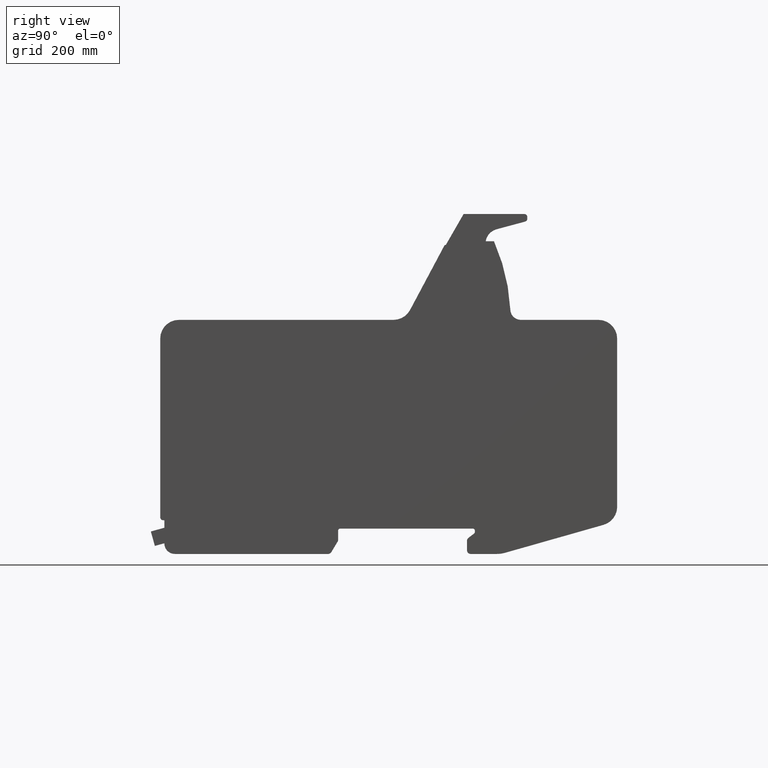
[diagram: clean part render]
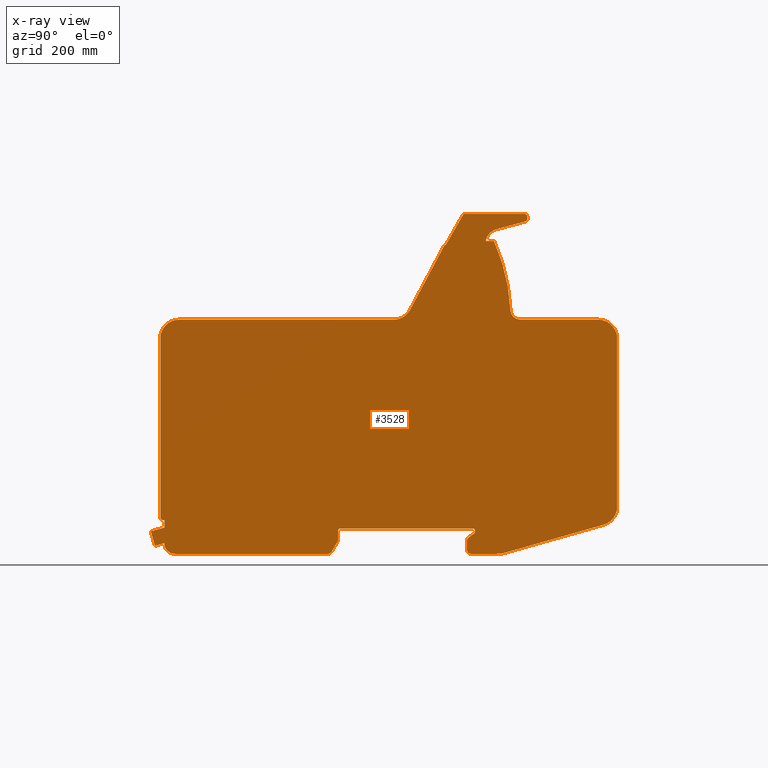
[diagram: x-ray — body ghosted, one internal face saturated and labeled with its STEP entity id]
A machine part, right view, then the same camera in x-ray: the body is ghosted and one INTERNAL B-rep face — a face not visible from any outside direction — is saturated and labeled: STEP entity #3528.
In plain terms, the highlighted planar face has unit normal (1, 0, 0).
Its self-contained STEP definition (entity closure, byte-faithful):
#2058=CARTESIAN_POINT('',(400.0,-16.00000000000005,-32.452741697599755));
#2059=VERTEX_POINT('',#2058);
#2066=CARTESIAN_POINT('',(400.0,-16.00000000000005,-57.499999999999822));
#2067=VERTEX_POINT('',#2066);
#2068=CARTESIAN_POINT('',(400.0,-16.00000000000005,-32.452741697599755));
#2069=DIRECTION('',(0.0,0.0,-1.0));
#2070=VECTOR('',#2069,25.047258302400067);
#2071=LINE('',#2068,#2070);
#2072=EDGE_CURVE('',#2059,#2067,#2071,.T.);
#2097=CARTESIAN_POINT('',(400.0,-12.06043215261758,-24.498424497223393));
#2098=VERTEX_POINT('',#2097);
#2105=CARTESIAN_POINT('',(400.0,-5.999999999982961,-32.452741697565266));
#2106=DIRECTION('',(1.0,0.0,0.0));
#2107=DIRECTION('',(0.0,-0.896114729056824,0.443822478438637));
#2108=AXIS2_PLACEMENT_3D('',#2105,#2106,#2107);
#2109=CIRCLE('',#2108,10.000000000017115);
#2110=EDGE_CURVE('',#2098,#2059,#2109,.T.);
#2129=CARTESIAN_POINT('',(400.0,3.030216076311909,-13.000787751363983));
#2130=VERTEX_POINT('',#2129);
#2137=CARTESIAN_POINT('',(400.0,3.030216076311909,-13.000787751363983));
#2138=DIRECTION('',(0.0,-0.795431720032286,-0.606043215263135));
#2139=VECTOR('',#2138,18.971645018527763);
#2140=LINE('',#2137,#2139);
#2141=EDGE_CURVE('',#2130,#2098,#2140,.T.);
#2161=CARTESIAN_POINT('',(400.0,5.0,-9.023629151199941));
#2162=VERTEX_POINT('',#2161);
#2169=CARTESIAN_POINT('',(400.0,1.421085E-013,-9.023629151199742));
#2170=DIRECTION('',(-1.0,0.0,0.0));
#2171=DIRECTION('',(0.0,0.896114729056035,-0.443822478440232));
#2172=AXIS2_PLACEMENT_3D('',#2169,#2170,#2171);
#2173=CIRCLE('',#2172,4.99999999999987);
#2174=EDGE_CURVE('',#2162,#2130,#2173,.T.);
#2193=CARTESIAN_POINT('',(400.0,4.999999999999893,-4.999999999999814));
#2194=VERTEX_POINT('',#2193);
#2201=CARTESIAN_POINT('',(400.0,4.999999999999893,-4.999999999999814));
#2202=DIRECTION('',(0.0,0.0,-1.0));
#2203=VECTOR('',#2202,4.023629151200128);
#2204=LINE('',#2201,#2203);
#2205=EDGE_CURVE('',#2194,#2162,#2204,.T.);
#2225=CARTESIAN_POINT('',(400.0,0.0,0.0));
#2226=VERTEX_POINT('',#2225);
#2233=CARTESIAN_POINT('',(400.0,3.552714E-014,-4.999999999999845));
#2234=DIRECTION('',(-1.0,0.0,0.0));
#2235=DIRECTION('',(0.0,0.707106781186542,0.707106781186553));
#2236=AXIS2_PLACEMENT_3D('',#2233,#2234,#2235);
#2237=CIRCLE('',#2236,4.999999999999845);
#2238=EDGE_CURVE('',#2226,#2194,#2237,.T.);
#2257=CARTESIAN_POINT('',(400.0,-355.00000000000006,1.909584E-013));
#2258=VERTEX_POINT('',#2257);
#2265=CARTESIAN_POINT('',(400.0,-355.00000000000006,1.909584E-013));
#2266=DIRECTION('',(0.0,1.0,0.0));
#2267=VECTOR('',#2266,355.00000000000006);
#2268=LINE('',#2265,#2267);
#2269=EDGE_CURVE('',#2258,#2226,#2268,.T.);
#2289=CARTESIAN_POINT('',(400.0,-360.0,-5.0));
#2290=VERTEX_POINT('',#2289);
#2297=CARTESIAN_POINT('',(400.0,-354.99999999999994,-4.999999999999845));
#2298=DIRECTION('',(-1.0,0.0,0.0));
#2299=DIRECTION('',(0.0,-0.707106781186566,0.707106781186529));
#2300=AXIS2_PLACEMENT_3D('',#2297,#2298,#2299);
#2301=CIRCLE('',#2300,5.000000000000034);
#2302=EDGE_CURVE('',#2290,#2258,#2301,.T.);
#2321=CARTESIAN_POINT('',(400.0,-360.00000000000006,-29.730160350499609));
#2322=VERTEX_POINT('',#2321);
#2329=CARTESIAN_POINT('',(400.0,-360.00000000000006,-29.730160350499609));
#2330=DIRECTION('',(0.0,0.0,1.0));
#2331=VECTOR('',#2330,24.730160350499609);
#2332=LINE('',#2329,#2331);
#2333=EDGE_CURVE('',#2322,#2290,#2332,.T.);
#2353=CARTESIAN_POINT('',(400.0,-361.42507074288375,-34.875117904789754));
#2354=VERTEX_POINT('',#2353);
#2361=CARTESIAN_POINT('',(400.0,-370.00000000000011,-29.730160350499265));
#2362=DIRECTION('',(1.0,0.0,0.0));
#2363=DIRECTION('',(0.0,0.96371492821052,-0.266933581896681));
#2364=AXIS2_PLACEMENT_3D('',#2361,#2362,#2363);
#2365=CIRCLE('',#2364,10.000000000000108);
#2366=EDGE_CURVE('',#2354,#2322,#2365,.T.);
#2385=CARTESIAN_POINT('',(400.0,-378.08697453258333,-62.644957554289782));
#2386=VERTEX_POINT('',#2385);
#2393=CARTESIAN_POINT('',(400.0,-378.08697453258333,-62.644957554289782));
#2394=DIRECTION('',(0.0,0.514495755427517,0.85749292571255));
#2395=VECTOR('',#2394,32.384919824760246);
#2396=LINE('',#2393,#2395);
#2397=EDGE_CURVE('',#2386,#2354,#2396,.T.);
#2417=CARTESIAN_POINT('',(400.0,-386.66190378969986,-67.5));
#2418=VERTEX_POINT('',#2417);
#2425=CARTESIAN_POINT('',(400.0,-386.66190378969998,-57.500000000000014));
#2426=DIRECTION('',(1.0,0.0,0.0));
#2427=DIRECTION('',(0.0,0.492698814982865,-0.870199906753891));
#2428=AXIS2_PLACEMENT_3D('',#2425,#2426,#2427);
#2429=CIRCLE('',#2428,9.999999999999977);
#2430=EDGE_CURVE('',#2418,#2386,#2429,.T.);
#2449=CARTESIAN_POINT('',(400.0,-796.00000000000023,-67.499999999999829));
#2450=VERTEX_POINT('',#2449);
#2457=CARTESIAN_POINT('',(400.0,-796.00000000000023,-67.499999999999829));
#2458=DIRECTION('',(0.0,1.0,0.0));
#2459=VECTOR('',#2458,409.33809621030036);
#2460=LINE('',#2457,#2459);
#2461=EDGE_CURVE('',#2450,#2418,#2460,.T.);
#2481=CARTESIAN_POINT('',(400.0,-823.99999999999977,-39.500000000000021));
#2482=VERTEX_POINT('',#2481);
#2489=CARTESIAN_POINT('',(400.0,-796.00000000000011,-39.500000000000199));
#2490=DIRECTION('',(1.0,0.0,0.0));
#2491=DIRECTION('',(0.0,-0.707106781186551,-0.707106781186544));
#2492=AXIS2_PLACEMENT_3D('',#2489,#2490,#2491);
#2493=CIRCLE('',#2492,27.999999999999623);
#2494=EDGE_CURVE('',#2482,#2450,#2493,.T.);
#2513=CARTESIAN_POINT('',(400.0,-823.99999999999977,-39.014537093900017));
#2514=VERTEX_POINT('',#2513);
#2521=CARTESIAN_POINT('',(400.0,-823.99999999999977,-39.014537093900017));
#2522=DIRECTION('',(0.0,0.0,-1.0));
#2523=VECTOR('',#2522,0.485462906100011);
#2524=LINE('',#2521,#2523);
#2525=EDGE_CURVE('',#2514,#2482,#2524,.T.);
#2544=CARTESIAN_POINT('',(400.0,-849.29424544898893,-46.040716385241502));
#2545=VERTEX_POINT('',#2544);
#2552=CARTESIAN_POINT('',(400.0,-849.29424544898893,-46.040716385241502));
#2553=DIRECTION('',(0.0,0.963517909630377,0.267643863784525));
#2554=VECTOR('',#2553,26.251972273865153);
#2555=LINE('',#2552,#2554);
#2556=EDGE_CURVE('',#2545,#2514,#2555,.T.);
#2575=CARTESIAN_POINT('',(400.0,-860.00000000002331,-7.500000000006635));
#2576=VERTEX_POINT('',#2575);
#2583=CARTESIAN_POINT('',(400.0,-860.00000000002331,-7.500000000006635));
#2584=DIRECTION('',(0.0,0.267643863776352,-0.963517909632647));
#2585=VECTOR('',#2584,39.99999999992631);
#2586=LINE('',#2583,#2585);
#2587=EDGE_CURVE('',#2576,#2545,#2586,.T.);
#2606=CARTESIAN_POINT('',(400.0,-823.99999999999977,2.500000000000231));
#2607=VERTEX_POINT('',#2606);
#2614=CARTESIAN_POINT('',(400.0,-823.99999999999977,2.500000000000231));
#2615=DIRECTION('',(0.0,-0.963517909629938,-0.267643863786103));
#2616=VECTOR('',#2615,37.363083384563318);
#2617=LINE('',#2614,#2616);
#2618=EDGE_CURVE('',#2607,#2576,#2617,.T.);
#2637=CARTESIAN_POINT('',(400.0,-823.99999999999977,22.5));
#2638=VERTEX_POINT('',#2637);
#2645=CARTESIAN_POINT('',(400.0,-823.99999999999977,22.5));
#2646=DIRECTION('',(0.0,0.0,-1.0));
#2647=VECTOR('',#2646,19.999999999999769);
#2648=LINE('',#2645,#2647);
#2649=EDGE_CURVE('',#2638,#2607,#2648,.T.);
#2668=CARTESIAN_POINT('',(400.0,-827.0,22.500000000000206));
#2669=VERTEX_POINT('',#2668);
#2676=CARTESIAN_POINT('',(400.0,-827.0,22.500000000000206));
#2677=DIRECTION('',(0.0,1.0,0.0));
#2678=VECTOR('',#2677,3.000000000000227);
#2679=LINE('',#2676,#2678);
#2680=EDGE_CURVE('',#2669,#2638,#2679,.T.);
#2700=CARTESIAN_POINT('',(400.0,-835.0,30.499999999999972));
#2701=VERTEX_POINT('',#2700);
#2708=CARTESIAN_POINT('',(400.0,-827.0,30.500000000000075));
#2709=DIRECTION('',(1.0,0.0,0.0));
#2710=DIRECTION('',(0.0,-0.707106781186538,-0.707106781186557));
#2711=AXIS2_PLACEMENT_3D('',#2708,#2709,#2710);
#2712=CIRCLE('',#2711,7.999999999999868);
#2713=EDGE_CURVE('',#2701,#2669,#2712,.T.);
#2732=CARTESIAN_POINT('',(400.0,-835.00000000000011,507.50000000000023));
#2733=VERTEX_POINT('',#2732);
#2740=CARTESIAN_POINT('',(400.0,-835.00000000000011,507.50000000000023));
#2741=DIRECTION('',(0.0,0.0,-1.0));
#2742=VECTOR('',#2741,477.00000000000023);
#2743=LINE('',#2740,#2742);
#2744=EDGE_CURVE('',#2733,#2701,#2743,.T.);
#2764=CARTESIAN_POINT('',(400.0,-785.00000000000011,557.5));
#2765=VERTEX_POINT('',#2764);
#2772=CARTESIAN_POINT('',(400.0,-785.00000000000023,507.50000000000023));
#2773=DIRECTION('',(1.0,0.0,0.0));
#2774=DIRECTION('',(0.0,-0.707106781186546,0.707106781186549));
#2775=AXIS2_PLACEMENT_3D('',#2772,#2773,#2774);
#2776=CIRCLE('',#2775,49.999999999999808);
#2777=EDGE_CURVE('',#2765,#2733,#2776,.T.);
#2796=CARTESIAN_POINT('',(400.0,-212.00700620289984,557.5));
#2797=VERTEX_POINT('',#2796);
#2804=CARTESIAN_POINT('',(400.0,-212.00700620289984,557.5));
#2805=DIRECTION('',(0.0,-1.0,0.0));
#2806=VECTOR('',#2805,572.99299379710033);
#2807=LINE('',#2804,#2806);
#2808=EDGE_CURVE('',#2797,#2765,#2807,.T.);
#2828=CARTESIAN_POINT('',(400.0,-167.88451179706968,583.97967926648357));
#2829=VERTEX_POINT('',#2828);
#2836=CARTESIAN_POINT('',(400.0,-212.00700620290013,607.50000000000023));
#2837=DIRECTION('',(-1.0,0.0,0.0));
#2838=DIRECTION('',(0.0,0.51458409678578,-0.857439914708409));
#2839=AXIS2_PLACEMENT_3D('',#2836,#2837,#2838);
#2840=CIRCLE('',#2839,50.000000000000306);
#2841=EDGE_CURVE('',#2829,#2797,#2840,.T.);
#2860=CARTESIAN_POINT('',(400.0,-75.499999999999829,757.28663163063993));
#2861=VERTEX_POINT('',#2860);
#2868=CARTESIAN_POINT('',(400.0,-75.499999999999829,757.28663163063993));
#2869=DIRECTION('',(0.0,-0.470406414670181,-0.882449888116683));
#2870=VECTOR('',#2869,196.39296768910768);
#2871=LINE('',#2868,#2870);
#2872=EDGE_CURVE('',#2861,#2829,#2871,.T.);
#2891=CARTESIAN_POINT('',(400.0,-72.578486230155406,757.28663163063993));
#2892=VERTEX_POINT('',#2891);
#2899=CARTESIAN_POINT('',(400.0,-72.578486230155406,757.28663163063993));
#2900=DIRECTION('',(0.0,-1.0,0.0));
#2901=VECTOR('',#2900,2.921513769844424);
#2902=LINE('',#2899,#2901);
#2903=EDGE_CURVE('',#2892,#2861,#2902,.T.);
#2922=CARTESIAN_POINT('',(400.0,-25.000000000000568,840.00000000000023));
#2923=VERTEX_POINT('',#2922);
#2930=CARTESIAN_POINT('',(400.0,-25.000000000000568,840.00000000000023));
#2931=DIRECTION('',(0.0,-0.498615241440962,-0.866823419735975));
#2932=VECTOR('',#2931,95.4212432268545);
#2933=LINE('',#2930,#2932);
#2934=EDGE_CURVE('',#2923,#2892,#2933,.T.);
#2953=CARTESIAN_POINT('',(400.0,137.5,840.0));
#2954=VERTEX_POINT('',#2953);
#2961=CARTESIAN_POINT('',(400.0,137.5,840.0));
#2962=DIRECTION('',(0.0,-1.0,0.0));
#2963=VECTOR('',#2962,162.50000000000057);
#2964=LINE('',#2961,#2963);
#2965=EDGE_CURVE('',#2954,#2923,#2964,.T.);
#2985=CARTESIAN_POINT('',(400.0,144.99999999999989,832.50000000000011));
#2986=VERTEX_POINT('',#2985);
#2993=CARTESIAN_POINT('',(400.0,137.50000000000003,832.50000000000011));
#2994=DIRECTION('',(1.0,0.0,0.0));
#2995=DIRECTION('',(0.0,0.707106781186546,0.707106781186549));
#2996=AXIS2_PLACEMENT_3D('',#2993,#2994,#2995);
#2997=CIRCLE('',#2996,7.499999999999875);
#2998=EDGE_CURVE('',#2986,#2954,#2997,.T.);
#3017=CARTESIAN_POINT('',(400.0,145.0,827.08495240980005));
#3018=VERTEX_POINT('',#3017);
#3025=CARTESIAN_POINT('',(400.0,145.0,827.08495240980005));
#3026=DIRECTION('',(0.0,0.0,1.0));
#3027=VECTOR('',#3026,5.415047590200175);
#3028=LINE('',#3025,#3027);
#3029=EDGE_CURVE('',#3018,#2986,#3028,.T.);
#3049=CARTESIAN_POINT('',(400.0,139.44114283829185,819.84050871263833));
#3050=VERTEX_POINT('',#3049);
#3057=CARTESIAN_POINT('',(400.0,137.50000000000011,827.08495240980017));
#3058=DIRECTION('',(1.0,0.0,0.0));
#3059=DIRECTION('',(0.0,0.793353340292192,-0.608761429007473));
#3060=AXIS2_PLACEMENT_3D('',#3057,#3058,#3059);
#3061=CIRCLE('',#3060,7.499999999999883);
#3062=EDGE_CURVE('',#3050,#3018,#3061,.T.);
#3081=CARTESIAN_POINT('',(400.0,62.957238195901937,799.34670822977546));
#3082=VERTEX_POINT('',#3081);
#3089=CARTESIAN_POINT('',(400.0,62.957238195901937,799.34670822977546));
#3090=DIRECTION('',(0.0,0.965925826289209,0.258819045101995));
#3091=VECTOR('',#3090,79.181964661010937);
#3092=LINE('',#3089,#3091);
#3093=EDGE_CURVE('',#3082,#3050,#3092,.T.);
#3113=CARTESIAN_POINT('',(400.0,33.890569653856417,767.49999999999841));
#3114=VERTEX_POINT('',#3113);
#3121=CARTESIAN_POINT('',(400.0,73.31000000000725,760.70967517820793));
#3122=DIRECTION('',(-1.0,0.0,0.0));
#3123=DIRECTION('',(0.0,-0.738609751546948,0.674133247155008));
#3124=AXIS2_PLACEMENT_3D('',#3121,#3122,#3123);
#3125=CIRCLE('',#3124,40.000000000005755);
#3126=EDGE_CURVE('',#3114,#3082,#3125,.T.);
#3145=CARTESIAN_POINT('',(400.0,56.099999999983936,767.4999999999967));
#3146=VERTEX_POINT('',#3145);
#3153=CARTESIAN_POINT('',(400.0,56.099999999983936,767.4999999999967));
#3154=DIRECTION('',(0.0,-1.0,0.0));
#3155=VECTOR('',#3154,22.209430346127519);
#3156=LINE('',#3153,#3155);
#3157=EDGE_CURVE('',#3146,#3114,#3156,.T.);
#3177=CARTESIAN_POINT('',(400.0,99.857462948040379,584.06517999301559));
#3178=VERTEX_POINT('',#3177);
#3185=CARTESIAN_POINT('',(400.0,-417.87144228321324,557.49999999999727));
#3186=DIRECTION('',(1.0,0.0,0.0));
#3187=DIRECTION('',(0.0,0.972707546673246,0.232034541921919));
#3188=AXIS2_PLACEMENT_3D('',#3185,#3186,#3187);
#3189=CIRCLE('',#3188,518.41000000001327);
#3190=EDGE_CURVE('',#3178,#3146,#3189,.T.);
#3210=CARTESIAN_POINT('',(400.0,127.82067613159994,557.50000000000023));
#3211=VERTEX_POINT('',#3210);
#3218=CARTESIAN_POINT('',(400.0,127.82067613158189,585.50000000001216));
#3219=DIRECTION('',(-1.0,0.0,0.0));
#3220=DIRECTION('',(0.0,-0.688751199026518,-0.724997783334221));
#3221=AXIS2_PLACEMENT_3D('',#3218,#3219,#3220);
#3222=CIRCLE('',#3221,28.000000000011898);
#3223=EDGE_CURVE('',#3211,#3178,#3222,.T.);
#3242=CARTESIAN_POINT('',(400.0,335.0,557.5));
#3243=VERTEX_POINT('',#3242);
#3250=CARTESIAN_POINT('',(400.0,335.0,557.5));
#3251=DIRECTION('',(0.0,-1.0,0.0));
#3252=VECTOR('',#3251,207.17932386840005);
#3253=LINE('',#3250,#3252);
#3254=EDGE_CURVE('',#3243,#3211,#3253,.T.);
#3274=CARTESIAN_POINT('',(400.0,384.99999999999989,507.50000000000023));
#3275=VERTEX_POINT('',#3274);
#3282=CARTESIAN_POINT('',(400.0,335.00000000000011,507.50000000000028));
#3283=DIRECTION('',(1.0,0.0,0.0));
#3284=DIRECTION('',(0.0,0.707106781186547,0.707106781186548));
#3285=AXIS2_PLACEMENT_3D('',#3282,#3283,#3284);
#3286=CIRCLE('',#3285,49.999999999999758);
#3287=EDGE_CURVE('',#3275,#3243,#3286,.T.);
#3306=CARTESIAN_POINT('',(400.0,385.0,58.281992166299986));
#3307=VERTEX_POINT('',#3306);
#3314=CARTESIAN_POINT('',(400.0,385.0,58.281992166299986));
#3315=DIRECTION('',(0.0,0.0,1.0));
#3316=VECTOR('',#3315,449.21800783370026);
#3317=LINE('',#3314,#3316);
#3318=EDGE_CURVE('',#3307,#3275,#3317,.T.);
#3338=CARTESIAN_POINT('',(400.0,348.65406519679368,10.182444313937729));
#3339=VERTEX_POINT('',#3338);
#3346=CARTESIAN_POINT('',(400.0,335.00000000000057,58.281992166299794));
#3347=DIRECTION('',(1.0,0.0,0.0));
#3348=DIRECTION('',(0.0,0.797834977904538,-0.602875897703719));
#3349=AXIS2_PLACEMENT_3D('',#3346,#3347,#3348);
#3350=CIRCLE('',#3349,49.999999999999467);
#3351=EDGE_CURVE('',#3339,#3307,#3350,.T.);
#3370=CARTESIAN_POINT('',(400.0,85.711639377588256,-64.45927656378899));
#3371=VERTEX_POINT('',#3370);
#3378=CARTESIAN_POINT('',(400.0,85.711639377588256,-64.45927656378899));
#3379=DIRECTION('',(0.0,0.961990957047202,0.273081303936041));
#3380=VECTOR('',#3379,273.33149432745);
#3381=LINE('',#3378,#3380);
#3382=EDGE_CURVE('',#3371,#3339,#3381,.T.);
#3402=CARTESIAN_POINT('',(400.0,63.865135062699672,-67.499999999999744));
#3403=VERTEX_POINT('',#3402);
#3410=CARTESIAN_POINT('',(400.0,63.865135062750049,12.500000000007233));
#3411=DIRECTION('',(1.0,0.0,0.0));
#3412=DIRECTION('',(0.0,0.137856887663365,-0.990452158624419));
#3413=AXIS2_PLACEMENT_3D('',#3410,#3411,#3412);
#3414=CIRCLE('',#3413,80.000000000006992);
#3415=EDGE_CURVE('',#3403,#3371,#3414,.T.);
#3434=CARTESIAN_POINT('',(400.0,-5.999999999999943,-67.5));
#3435=VERTEX_POINT('',#3434);
#3442=CARTESIAN_POINT('',(400.0,-5.999999999999943,-67.5));
#3443=DIRECTION('',(0.0,1.0,0.0));
#3444=VECTOR('',#3443,69.865135062699608);
#3445=LINE('',#3442,#3444);
#3446=EDGE_CURVE('',#3435,#3403,#3445,.T.);
#3465=CARTESIAN_POINT('',(400.0,-5.999999999999943,-57.499999999999872));
#3466=DIRECTION('',(1.0,0.0,0.0));
#3467=DIRECTION('',(0.0,-0.70710678118655,-0.707106781186545));
#3468=AXIS2_PLACEMENT_3D('',#3465,#3466,#3467);
#3469=CIRCLE('',#3468,10.000000000000126);
#3470=EDGE_CURVE('',#2067,#3435,#3469,.T.);
#3476=CARTESIAN_POINT('',(400.00000000000034,-183.66130505234872,263.91448633002136));
#3477=DIRECTION('',(1.0,0.0,0.0));
#3478=DIRECTION('',(0.0,0.0,-1.0));
#3479=AXIS2_PLACEMENT_3D('',#3476,#3477,#3478);
#3480=PLANE('',#3479);
#3481=ORIENTED_EDGE('',*,*,#3470,.F.);
#3482=ORIENTED_EDGE('',*,*,#2072,.F.);
#3483=ORIENTED_EDGE('',*,*,#2110,.F.);
#3484=ORIENTED_EDGE('',*,*,#2141,.F.);
#3485=ORIENTED_EDGE('',*,*,#2174,.F.);
#3486=ORIENTED_EDGE('',*,*,#2205,.F.);
#3487=ORIENTED_EDGE('',*,*,#2238,.F.);
#3488=ORIENTED_EDGE('',*,*,#2269,.F.);
#3489=ORIENTED_EDGE('',*,*,#2302,.F.);
#3490=ORIENTED_EDGE('',*,*,#2333,.F.);
#3491=ORIENTED_EDGE('',*,*,#2366,.F.);
#3492=ORIENTED_EDGE('',*,*,#2397,.F.);
#3493=ORIENTED_EDGE('',*,*,#2430,.F.);
#3494=ORIENTED_EDGE('',*,*,#2461,.F.);
#3495=ORIENTED_EDGE('',*,*,#2494,.F.);
#3496=ORIENTED_EDGE('',*,*,#2525,.F.);
#3497=ORIENTED_EDGE('',*,*,#2556,.F.);
#3498=ORIENTED_EDGE('',*,*,#2587,.F.);
#3499=ORIENTED_EDGE('',*,*,#2618,.F.);
#3500=ORIENTED_EDGE('',*,*,#2649,.F.);
#3501=ORIENTED_EDGE('',*,*,#2680,.F.);
#3502=ORIENTED_EDGE('',*,*,#2713,.F.);
#3503=ORIENTED_EDGE('',*,*,#2744,.F.);
#3504=ORIENTED_EDGE('',*,*,#2777,.F.);
#3505=ORIENTED_EDGE('',*,*,#2808,.F.);
#3506=ORIENTED_EDGE('',*,*,#2841,.F.);
#3507=ORIENTED_EDGE('',*,*,#2872,.F.);
#3508=ORIENTED_EDGE('',*,*,#2903,.F.);
#3509=ORIENTED_EDGE('',*,*,#2934,.F.);
#3510=ORIENTED_EDGE('',*,*,#2965,.F.);
#3511=ORIENTED_EDGE('',*,*,#2998,.F.);
#3512=ORIENTED_EDGE('',*,*,#3029,.F.);
#3513=ORIENTED_EDGE('',*,*,#3062,.F.);
#3514=ORIENTED_EDGE('',*,*,#3093,.F.);
#3515=ORIENTED_EDGE('',*,*,#3126,.F.);
#3516=ORIENTED_EDGE('',*,*,#3157,.F.);
#3517=ORIENTED_EDGE('',*,*,#3190,.F.);
#3518=ORIENTED_EDGE('',*,*,#3223,.F.);
#3519=ORIENTED_EDGE('',*,*,#3254,.F.);
#3520=ORIENTED_EDGE('',*,*,#3287,.F.);
#3521=ORIENTED_EDGE('',*,*,#3318,.F.);
#3522=ORIENTED_EDGE('',*,*,#3351,.F.);
#3523=ORIENTED_EDGE('',*,*,#3382,.F.);
#3524=ORIENTED_EDGE('',*,*,#3415,.F.);
#3525=ORIENTED_EDGE('',*,*,#3446,.F.);
#3526=EDGE_LOOP('',(#3481,#3482,#3483,#3484,#3485,#3486,#3487,#3488,#3489,#3490,#3491,#3492,#3493,#3494,#3495,#3496,#3497,#3498,#3499,#3500,#3501,#3502,#3503,#3504,#3505,#3506,#3507,#3508,#3509,#3510,#3511,#3512,#3513,#3514,#3515,#3516,#3517,#3518,#3519,#3520,#3521,#3522,#3523,#3524,#3525));
#3527=FACE_OUTER_BOUND('',#3526,.T.);
#3528=ADVANCED_FACE('',(#3527),#3480,.F.);